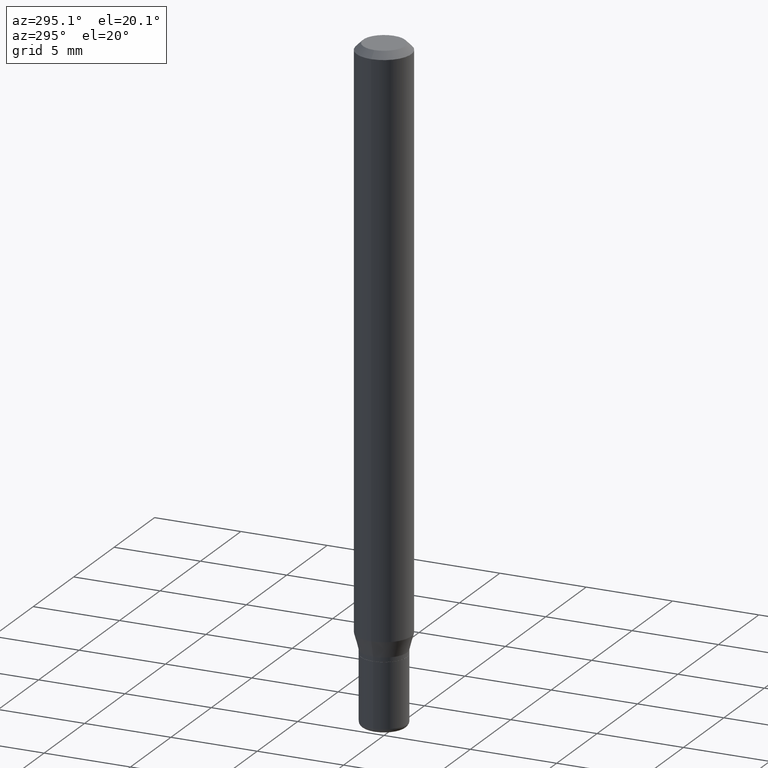
[diagram: clean part render]
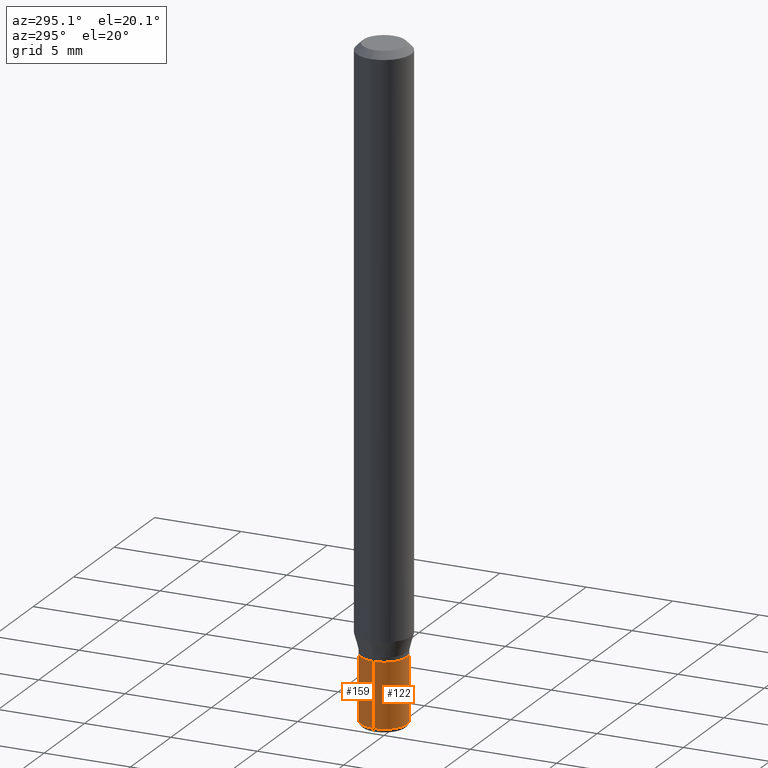
[diagram: same view with one multi-face feature highlighted, each face labeled with its STEP entity id]
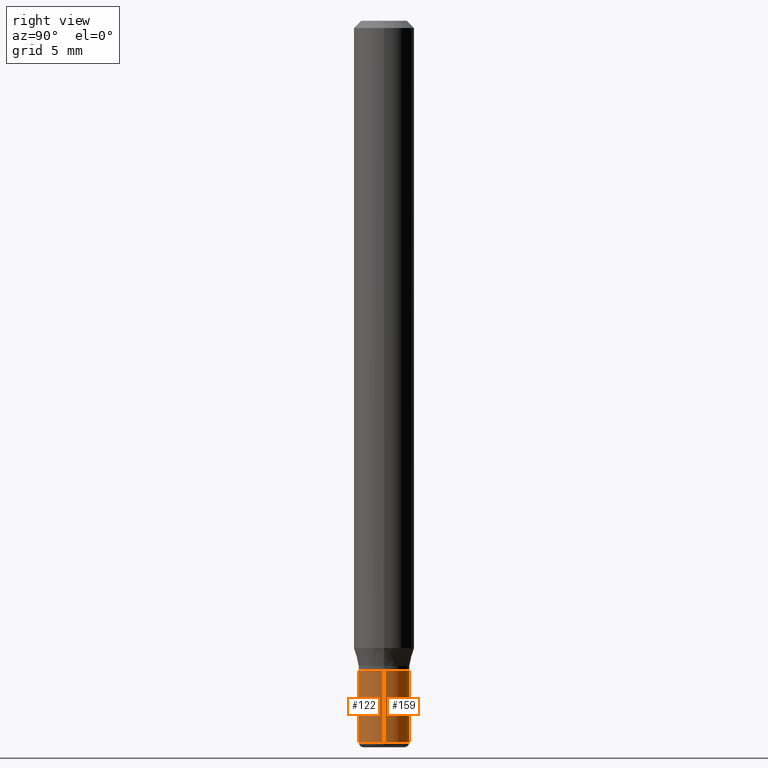
[diagram: same view with one multi-face feature highlighted, each face labeled with its STEP entity id]
A machine part, auxiliary view. The highlighted faces form ONE feature: a constant-radius fillet chain: 2 tangent blend faces with common blend radius 1.3335 mm. The faces share edges in the B-rep.
A second angle (right view) of the same feature is appended — it is thin or edge-on in the first view.
Their STEP definitions:
[1] entity #122 (Cylinder):
#5 = DIRECTION ( 'NONE',  ( -2.445468806185136597E-29, 3.491481338843145583E-15, 1.000000000000000000 ) ) ;
#35 = VERTEX_POINT ( 'NONE', #295 ) ;
#36 = DIRECTION ( 'NONE',  ( -2.445468806185136597E-29, 3.491481338843145583E-15, 1.000000000000000000 ) ) ;
#37 = CYLINDRICAL_SURFACE ( 'NONE', #240, 0.05249999999999997030 ) ;
#43 = LINE ( 'NONE', #207, #114 ) ;
#82 = CIRCLE ( 'NONE', #384, 0.05249999999999999806 ) ;
#108 = EDGE_LOOP ( 'NONE', ( #215, #242, #166, #353 ) ) ;
#110 = EDGE_CURVE ( 'NONE', #433, #189, #82, .T. ) ;
#113 = CARTESIAN_POINT ( 'NONE',  ( -0.05249999999999997030, 3.730349362740523866E-16, -2.582440922383824260E-30 ) ) ;
#114 = VECTOR ( 'NONE', #293, 39.37007874015748143 ) ;
#122 = ADVANCED_FACE ( 'NONE', ( #170 ), #37, .T. ) ;
#143 = CARTESIAN_POINT ( 'NONE',  ( 0.05249999999999994255, -5.568912735454815688E-15, -1.490000000000000213 ) ) ;
#157 = LINE ( 'NONE', #113, #484 ) ;
#166 = ORIENTED_EDGE ( 'NONE', *, *, #297, .T. ) ;
#170 = FACE_OUTER_BOUND ( 'NONE', #108, .T. ) ;
#175 = CIRCLE ( 'NONE', #360, 0.05249999999999994255 ) ;
#189 = VERTEX_POINT ( 'NONE', #460 ) ;
#203 = CARTESIAN_POINT ( 'NONE',  ( 0.000000000000000000, 0.000000000000000000, 0.000000000000000000 ) ) ;
#207 = CARTESIAN_POINT ( 'NONE',  ( 0.05249999999999997030, -3.666055405785287656E-16, 2.559992807292864610E-30 ) ) ;
#215 = ORIENTED_EDGE ( 'NONE', *, *, #398, .F. ) ;
#240 = AXIS2_PLACEMENT_3D ( 'NONE', #203, #5, #329 ) ;
#242 = ORIENTED_EDGE ( 'NONE', *, *, #516, .T. ) ;
#275 = DIRECTION ( 'NONE',  ( -2.445468806185136877E-29, 3.491481338843145188E-15, 1.000000000000000000 ) ) ;
#293 = DIRECTION ( 'NONE',  ( -2.445468806185136877E-29, 3.491481338843145188E-15, 1.000000000000000000 ) ) ;
#295 = CARTESIAN_POINT ( 'NONE',  ( -0.05249999999999994255, -4.571775509862553934E-15, -1.490000000000000213 ) ) ;
#297 = EDGE_CURVE ( 'NONE', #437, #189, #43, .T. ) ;
#321 = CARTESIAN_POINT ( 'NONE',  ( 3.643748521215853910E-29, -5.202307194876288105E-15, -1.490000000000000213 ) ) ;
#328 = DIRECTION ( 'NONE',  ( 1.000000000000000000, -6.982962677686268288E-15, 0.000000000000000000 ) ) ;
#329 = DIRECTION ( 'NONE',  ( 1.000000000000000000, -6.982962677686265922E-15, 4.876176775795935232E-29 ) ) ;
#343 = CARTESIAN_POINT ( 'NONE',  ( -0.05249999999999999806, -4.571775509862553934E-15, -1.342500000000000249 ) ) ;
#353 = ORIENTED_EDGE ( 'NONE', *, *, #110, .F. ) ;
#360 = AXIS2_PLACEMENT_3D ( 'NONE', #321, #36, #362 ) ;
#362 = DIRECTION ( 'NONE',  ( 1.000000000000000000, -6.982962677686257244E-15, 0.000000000000000000 ) ) ;
#384 = AXIS2_PLACEMENT_3D ( 'NONE', #407, #506, #328 ) ;
#398 = EDGE_CURVE ( 'NONE', #35, #433, #157, .T. ) ;
#407 = CARTESIAN_POINT ( 'NONE',  ( 3.283041872303546419E-29, -4.687313697396923253E-15, -1.342500000000000249 ) ) ;
#433 = VERTEX_POINT ( 'NONE', #343 ) ;
#437 = VERTEX_POINT ( 'NONE', #143 ) ;
#460 = CARTESIAN_POINT ( 'NONE',  ( 0.05249999999999999806, -5.053919237975452413E-15, -1.342500000000000249 ) ) ;
#484 = VECTOR ( 'NONE', #275, 39.37007874015748143 ) ;
#506 = DIRECTION ( 'NONE',  ( -2.445468806185136597E-29, 3.491481338843145583E-15, 1.000000000000000000 ) ) ;
#516 = EDGE_CURVE ( 'NONE', #35, #437, #175, .T. ) ;
[2] entity #159 (Cylinder):
#28 = CIRCLE ( 'NONE', #322, 0.05249999999999999806 ) ;
#35 = VERTEX_POINT ( 'NONE', #295 ) ;
#43 = LINE ( 'NONE', #207, #114 ) ;
#59 = AXIS2_PLACEMENT_3D ( 'NONE', #410, #302, #463 ) ;
#80 = EDGE_CURVE ( 'NONE', #437, #35, #359, .T. ) ;
#84 = ORIENTED_EDGE ( 'NONE', *, *, #398, .T. ) ;
#89 = CYLINDRICAL_SURFACE ( 'NONE', #148, 0.05249999999999997030 ) ;
#99 = CARTESIAN_POINT ( 'NONE',  ( 3.283041872303546419E-29, -4.687313697396923253E-15, -1.342500000000000249 ) ) ;
#113 = CARTESIAN_POINT ( 'NONE',  ( -0.05249999999999997030, 3.730349362740523866E-16, -2.582440922383824260E-30 ) ) ;
#114 = VECTOR ( 'NONE', #293, 39.37007874015748143 ) ;
#115 = ORIENTED_EDGE ( 'NONE', *, *, #196, .F. ) ;
#143 = CARTESIAN_POINT ( 'NONE',  ( 0.05249999999999994255, -5.568912735454815688E-15, -1.490000000000000213 ) ) ;
#148 = AXIS2_PLACEMENT_3D ( 'NONE', #300, #258, #338 ) ;
#157 = LINE ( 'NONE', #113, #484 ) ;
#159 = ADVANCED_FACE ( 'NONE', ( #423 ), #89, .T. ) ;
#189 = VERTEX_POINT ( 'NONE', #460 ) ;
#196 = EDGE_CURVE ( 'NONE', #189, #433, #28, .T. ) ;
#207 = CARTESIAN_POINT ( 'NONE',  ( 0.05249999999999997030, -3.666055405785287656E-16, 2.559992807292864610E-30 ) ) ;
#258 = DIRECTION ( 'NONE',  ( -2.445468806185136597E-29, 3.491481338843145583E-15, 1.000000000000000000 ) ) ;
#263 = DIRECTION ( 'NONE',  ( 1.000000000000000000, -6.982962677686268288E-15, 0.000000000000000000 ) ) ;
#275 = DIRECTION ( 'NONE',  ( -2.445468806185136877E-29, 3.491481338843145188E-15, 1.000000000000000000 ) ) ;
#276 = EDGE_LOOP ( 'NONE', ( #369, #84, #115, #442 ) ) ;
#293 = DIRECTION ( 'NONE',  ( -2.445468806185136877E-29, 3.491481338843145188E-15, 1.000000000000000000 ) ) ;
#295 = CARTESIAN_POINT ( 'NONE',  ( -0.05249999999999994255, -4.571775509862553934E-15, -1.490000000000000213 ) ) ;
#297 = EDGE_CURVE ( 'NONE', #437, #189, #43, .T. ) ;
#300 = CARTESIAN_POINT ( 'NONE',  ( 0.000000000000000000, 0.000000000000000000, 0.000000000000000000 ) ) ;
#302 = DIRECTION ( 'NONE',  ( -2.445468806185136597E-29, 3.491481338843145583E-15, 1.000000000000000000 ) ) ;
#322 = AXIS2_PLACEMENT_3D ( 'NONE', #99, #408, #263 ) ;
#338 = DIRECTION ( 'NONE',  ( 1.000000000000000000, -6.982962677686265922E-15, 4.876176775795935232E-29 ) ) ;
#343 = CARTESIAN_POINT ( 'NONE',  ( -0.05249999999999999806, -4.571775509862553934E-15, -1.342500000000000249 ) ) ;
#359 = CIRCLE ( 'NONE', #59, 0.05249999999999994255 ) ;
#369 = ORIENTED_EDGE ( 'NONE', *, *, #80, .T. ) ;
#398 = EDGE_CURVE ( 'NONE', #35, #433, #157, .T. ) ;
#408 = DIRECTION ( 'NONE',  ( -2.445468806185136597E-29, 3.491481338843145583E-15, 1.000000000000000000 ) ) ;
#410 = CARTESIAN_POINT ( 'NONE',  ( 3.643748521215853910E-29, -5.202307194876288105E-15, -1.490000000000000213 ) ) ;
#423 = FACE_OUTER_BOUND ( 'NONE', #276, .T. ) ;
#433 = VERTEX_POINT ( 'NONE', #343 ) ;
#437 = VERTEX_POINT ( 'NONE', #143 ) ;
#442 = ORIENTED_EDGE ( 'NONE', *, *, #297, .F. ) ;
#460 = CARTESIAN_POINT ( 'NONE',  ( 0.05249999999999999806, -5.053919237975452413E-15, -1.342500000000000249 ) ) ;
#463 = DIRECTION ( 'NONE',  ( 1.000000000000000000, -6.982962677686257244E-15, 0.000000000000000000 ) ) ;
#484 = VECTOR ( 'NONE', #275, 39.37007874015748143 ) ;